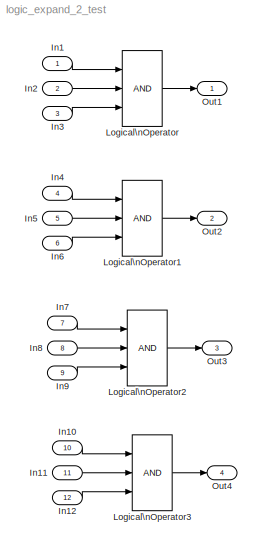
MODEL logic_expand_2_test
KIND model
BLOCK [Inport] In1
  IconDisplay = Port number
  PortDimensions = 1
  SID = 1
BLOCK [Inport] In10
  IconDisplay = Port number
  Port = 10
  PortDimensions = [2 3]
  SID = 10
BLOCK [Inport] In11
  IconDisplay = Port number
  Port = 11
  PortDimensions = 1
  SID = 11
BLOCK [Inport] In12
  IconDisplay = Port number
  Port = 12
  PortDimensions = 1
  SID = 12
BLOCK [Inport] In2
  IconDisplay = Port number
  Port = 2
  PortDimensions = [2 3]
  SID = 2
BLOCK [Inport] In3
  IconDisplay = Port number
  Port = 3
  PortDimensions = 1
  SID = 3
BLOCK [Inport] In4
  IconDisplay = Port number
  Port = 4
  PortDimensions = [2 3]
  SID = 4
BLOCK [Inport] In5
  IconDisplay = Port number
  Port = 5
  PortDimensions = 1
  SID = 5
BLOCK [Inport] In6
  IconDisplay = Port number
  Port = 6
  PortDimensions = [2 3]
  SID = 6
BLOCK [Inport] In7
  IconDisplay = Port number
  Port = 7
  PortDimensions = 1
  SID = 7
BLOCK [Inport] In8
  IconDisplay = Port number
  Port = 8
  PortDimensions = 1
  SID = 8
BLOCK [Inport] In9
  IconDisplay = Port number
  Port = 9
  PortDimensions = [2 3]
  SID = 9
BLOCK [Logic] Logical\nOperator
  AllPortsSameDT = off
  Inputs = 3
  OutDataTypeStr = boolean
  Ports = [3, 1]
  SID = 13
BLOCK [Logic] Logical\nOperator1
  AllPortsSameDT = off
  Inputs = 3
  OutDataTypeStr = boolean
  Ports = [3, 1]
  SID = 14
BLOCK [Logic] Logical\nOperator2
  AllPortsSameDT = off
  Inputs = 3
  OutDataTypeStr = boolean
  Ports = [3, 1]
  SID = 15
BLOCK [Logic] Logical\nOperator3
  AllPortsSameDT = off
  Inputs = 3
  OutDataTypeStr = boolean
  Ports = [3, 1]
  SID = 16
BLOCK [Outport] Out1
  IconDisplay = Port number
  SID = 17
BLOCK [Outport] Out2
  IconDisplay = Port number
  Port = 2
  SID = 18
BLOCK [Outport] Out3
  IconDisplay = Port number
  Port = 3
  SID = 19
BLOCK [Outport] Out4
  IconDisplay = Port number
  Port = 4
  SID = 20
LINE In10:1 -> Logical\nOperator3:1
LINE In11:1 -> Logical\nOperator3:2
LINE In12:1 -> Logical\nOperator3:3
LINE In1:1 -> Logical\nOperator:1
LINE In2:1 -> Logical\nOperator:2
LINE In3:1 -> Logical\nOperator:3
LINE In4:1 -> Logical\nOperator1:1
LINE In5:1 -> Logical\nOperator1:2
LINE In6:1 -> Logical\nOperator1:3
LINE In7:1 -> Logical\nOperator2:1
LINE In8:1 -> Logical\nOperator2:2
LINE In9:1 -> Logical\nOperator2:3
LINE Logical\nOperator1:1 -> Out2:1
LINE Logical\nOperator2:1 -> Out3:1
LINE Logical\nOperator3:1 -> Out4:1
LINE Logical\nOperator:1 -> Out1:1
